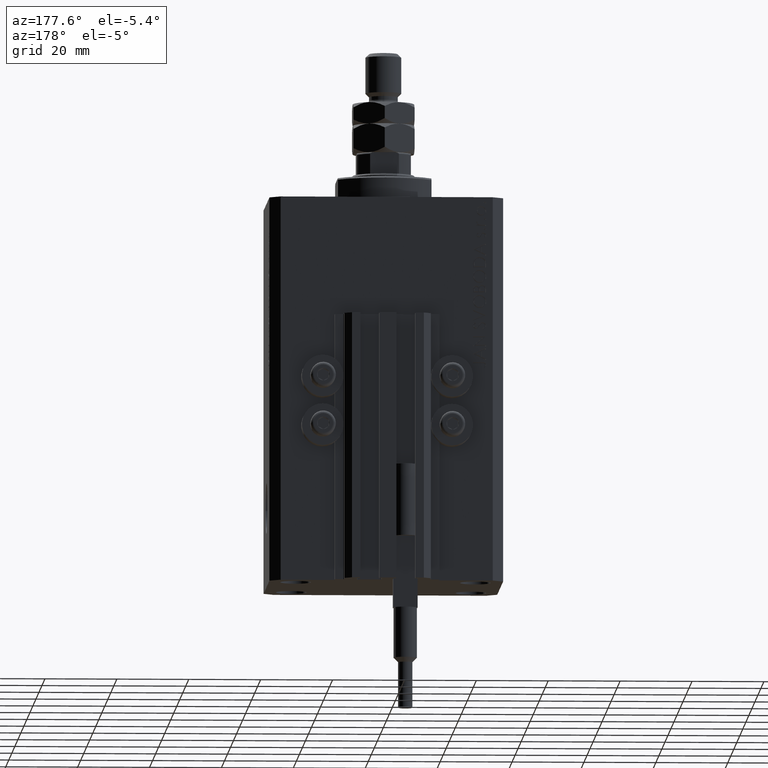
[diagram: clean part render]
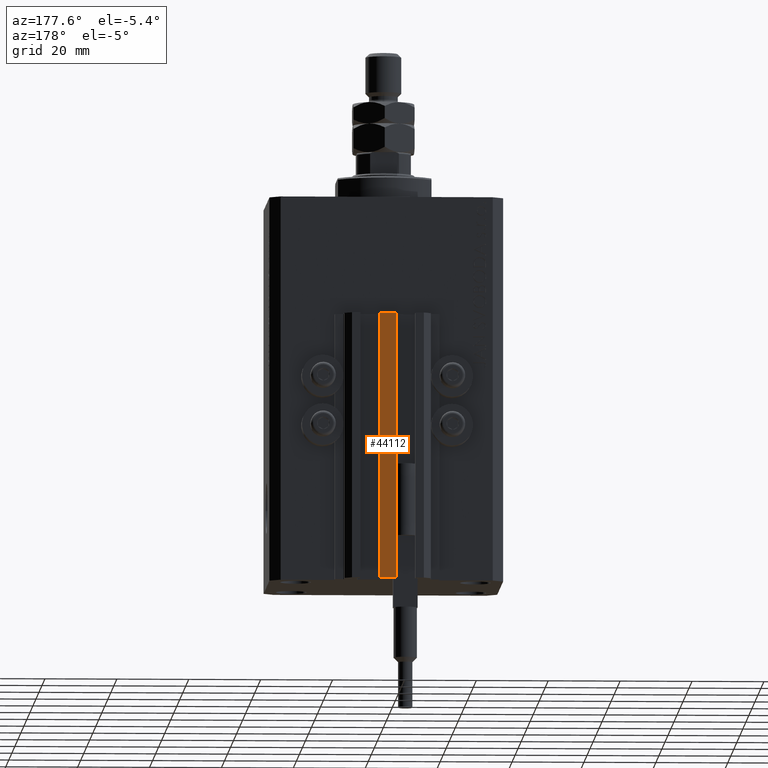
[diagram: same view with one face highlighted and labeled with its STEP entity id]
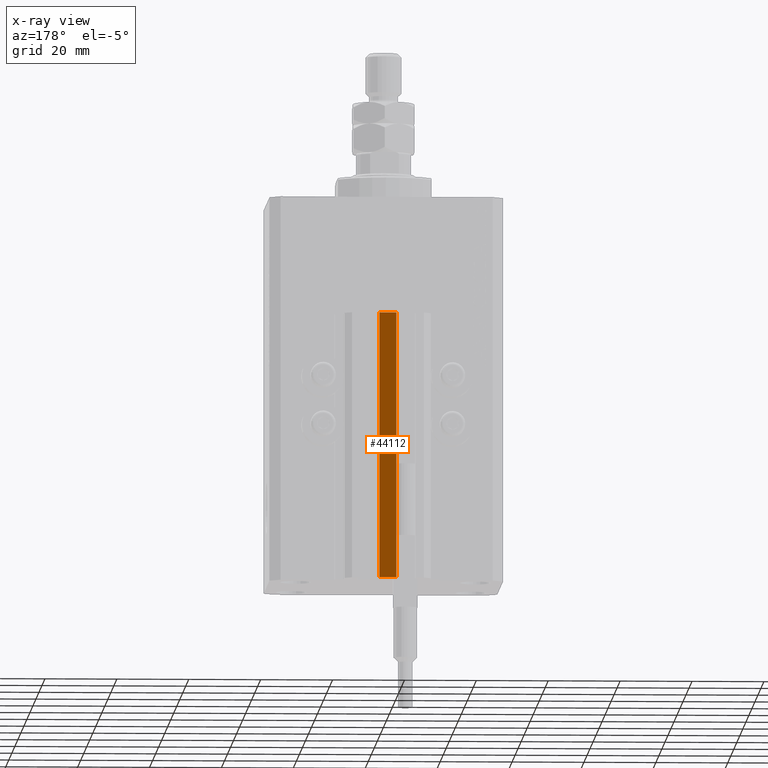
[diagram: x-ray of the same camera — body ghosted, the highlighted face saturated]
A machine part, auxiliary view. The second image highlights one B-rep face of the part: STEP entity #44112.
The next image is the same camera in x-ray: the body ghosted, the highlighted face saturated — about 0% of this face is hidden behind the body in this view.
In plain terms, the highlighted planar face has unit normal (0, -1, 0).
Its self-contained STEP definition (entity closure, byte-faithful):
#321 = ORIENTED_EDGE ( 'NONE', *, *, #16395, .F. ) ;
#1505 = VECTOR ( 'NONE', #22088, 1000.000000000000000 ) ;
#1532 = ORIENTED_EDGE ( 'NONE', *, *, #2012, .T. ) ;
#2012 = EDGE_CURVE ( 'NONE', #27370, #11442, #3756, .T. ) ;
#2512 = CARTESIAN_POINT ( 'NONE',  ( -2.350000000000003197, 30.49999999999949907, -107.0000000000000000 ) ) ;
#3756 = LINE ( 'NONE', #22072, #41685 ) ;
#6923 = DIRECTION ( 'NONE',  ( 0.000000000000000000, -1.000000000000000000, 0.000000000000000000 ) ) ;
#9481 = CARTESIAN_POINT ( 'NONE',  ( 2.349999999999999645, 30.49999999999949907, -107.0000000000000000 ) ) ;
#11442 = VERTEX_POINT ( 'NONE', #28112 ) ;
#12796 = AXIS2_PLACEMENT_3D ( 'NONE', #41239, #6923, #22205 ) ;
#16395 = EDGE_CURVE ( 'NONE', #33666, #34867, #16678, .T. ) ;
#16678 = LINE ( 'NONE', #47256, #33905 ) ;
#17273 = ORIENTED_EDGE ( 'NONE', *, *, #37608, .T. ) ;
#19640 = CARTESIAN_POINT ( 'NONE',  ( 2.349999999999999645, 30.49999999999949907, -33.00000000000000000 ) ) ;
#19729 = EDGE_LOOP ( 'NONE', ( #17273, #321, #35855, #1532 ) ) ;
#22072 = CARTESIAN_POINT ( 'NONE',  ( -2.350000000000003197, 30.49999999999949907, -107.0000000000000000 ) ) ;
#22088 = DIRECTION ( 'NONE',  ( 1.000000000000000000, 0.000000000000000000, 0.000000000000000000 ) ) ;
#22205 = DIRECTION ( 'NONE',  ( 0.000000000000000000, -0.000000000000000000, -1.000000000000000000 ) ) ;
#22261 = CARTESIAN_POINT ( 'NONE',  ( -2.350000000000003197, 30.49999999999949907, -107.0000000000000000 ) ) ;
#24463 = DIRECTION ( 'NONE',  ( 0.000000000000000000, 0.000000000000000000, 1.000000000000000000 ) ) ;
#26570 = DIRECTION ( 'NONE',  ( 0.000000000000000000, 0.000000000000000000, 1.000000000000000000 ) ) ;
#27370 = VERTEX_POINT ( 'NONE', #2512 ) ;
#28112 = CARTESIAN_POINT ( 'NONE',  ( -2.350000000000003197, 30.49999999999949907, -33.00000000000000000 ) ) ;
#30750 = LINE ( 'NONE', #22261, #43099 ) ;
#33470 = PLANE ( 'NONE',  #12796 ) ;
#33666 = VERTEX_POINT ( 'NONE', #9481 ) ;
#33905 = VECTOR ( 'NONE', #24463, 1000.000000000000000 ) ;
#34266 = CARTESIAN_POINT ( 'NONE',  ( -2.350000000000003197, 30.49999999999949907, -33.00000000000000000 ) ) ;
#34867 = VERTEX_POINT ( 'NONE', #19640 ) ;
#35855 = ORIENTED_EDGE ( 'NONE', *, *, #36900, .F. ) ;
#36900 = EDGE_CURVE ( 'NONE', #27370, #33666, #30750, .T. ) ;
#37608 = EDGE_CURVE ( 'NONE', #11442, #34867, #46061, .T. ) ;
#41239 = CARTESIAN_POINT ( 'NONE',  ( -2.350000000000003197, 30.49999999999949907, -107.0000000000000000 ) ) ;
#41685 = VECTOR ( 'NONE', #26570, 1000.000000000000000 ) ;
#43099 = VECTOR ( 'NONE', #49316, 1000.000000000000000 ) ;
#44112 = ADVANCED_FACE ( 'NONE', ( #44773 ), #33470, .F. ) ;
#44773 = FACE_OUTER_BOUND ( 'NONE', #19729, .T. ) ;
#46061 = LINE ( 'NONE', #34266, #1505 ) ;
#47256 = CARTESIAN_POINT ( 'NONE',  ( 2.349999999999999645, 30.49999999999949907, -107.0000000000000000 ) ) ;
#49316 = DIRECTION ( 'NONE',  ( 1.000000000000000000, 0.000000000000000000, 0.000000000000000000 ) ) ;